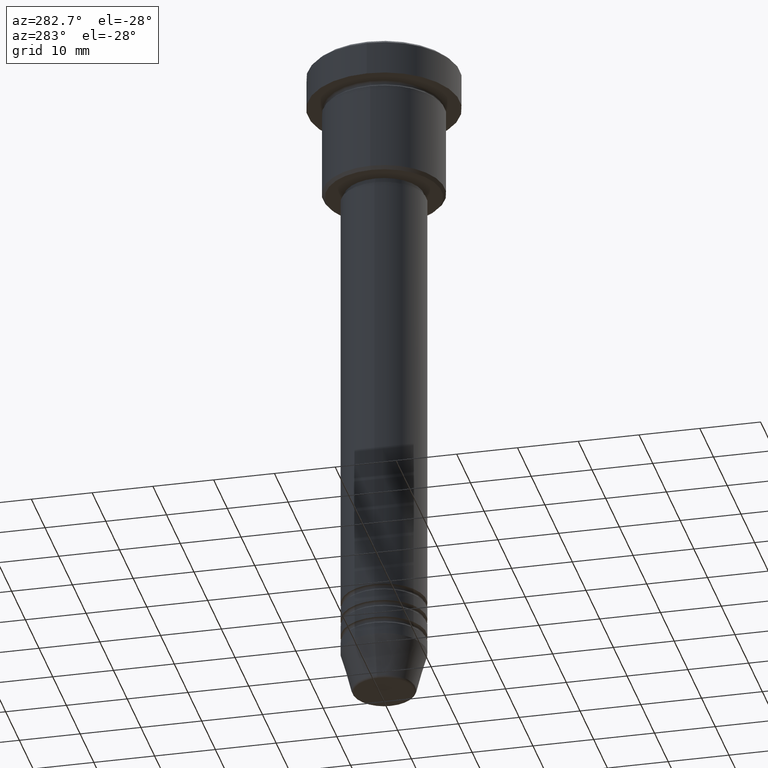
[diagram: clean part render]
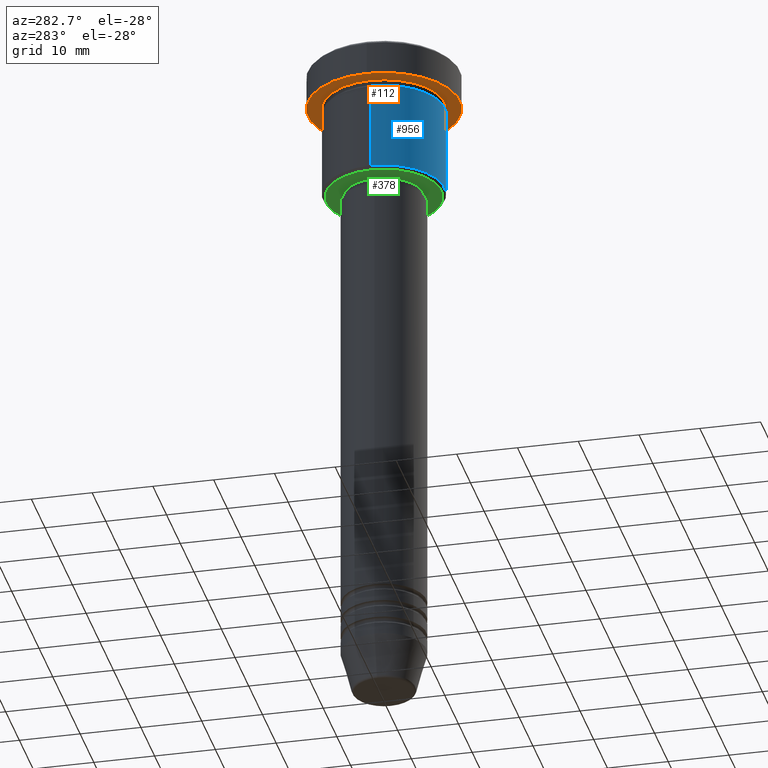
[diagram: same view with three faces highlighted in distinct colors, each labeled with its STEP entity id]
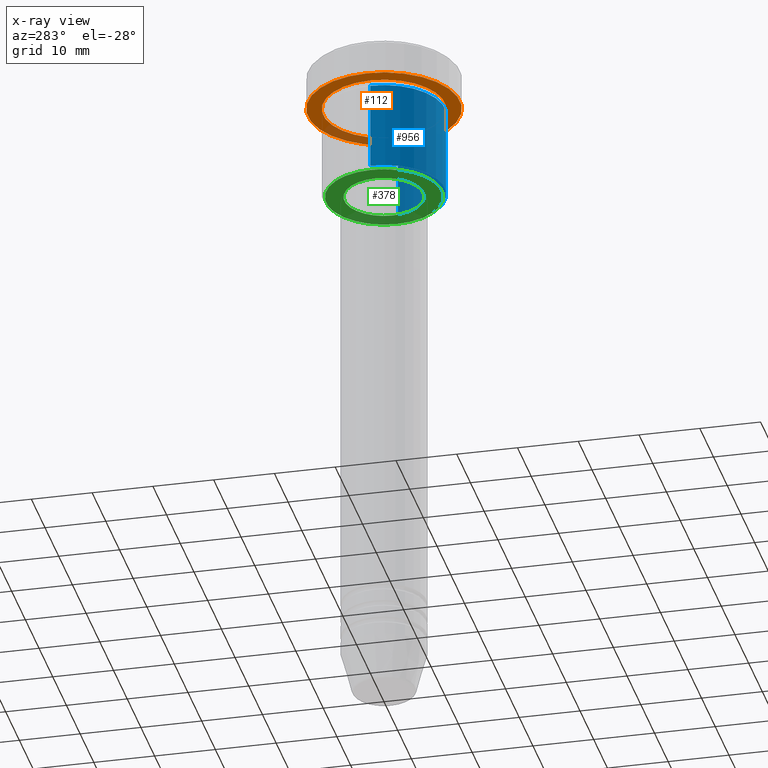
[diagram: x-ray of the same camera — body ghosted, the three highlighted faces saturated]
A machine part, auxiliary view with three faces highlighted in distinct colors.
The next image is the same camera in x-ray (body ghosted, the three faces saturated) — at least one of them is partly hidden behind the body in this view.
Their STEP definitions:

[orange] entity #112 — the highlighted planar face has unit normal (0, 0, -1).
#30 = AXIS2_PLACEMENT_3D ( 'NONE', #208, #574, #396 ) ;
#32 = CARTESIAN_POINT ( 'NONE',  ( 0.000000000000000000, 0.000000000000000000, -5.999999999999996447 ) ) ;
#54 = ORIENTED_EDGE ( 'NONE', *, *, #1115, .T. ) ;
#98 = VERTEX_POINT ( 'NONE', #113 ) ;
#112 = ADVANCED_FACE ( 'NONE', ( #860, #150 ), #307, .T. ) ;
#113 = CARTESIAN_POINT ( 'NONE',  ( -12.50000000000000000, 1.530808498934191521E-15, -5.999999999999996447 ) ) ;
#150 = FACE_OUTER_BOUND ( 'NONE', #1120, .T. ) ;
#164 = CIRCLE ( 'NONE', #981, 12.50000000000000000 ) ;
#176 = AXIS2_PLACEMENT_3D ( 'NONE', #874, #335, #1149 ) ;
#177 = EDGE_CURVE ( 'NONE', #432, #98, #790, .T. ) ;
#204 = DIRECTION ( 'NONE',  ( 1.000000000000000000, 0.000000000000000000, 0.000000000000000000 ) ) ;
#208 = CARTESIAN_POINT ( 'NONE',  ( 0.000000000000000000, 0.000000000000000000, -5.999999999999996447 ) ) ;
#275 = AXIS2_PLACEMENT_3D ( 'NONE', #912, #291, #204 ) ;
#291 = DIRECTION ( 'NONE',  ( -0.000000000000000000, -0.000000000000000000, 1.000000000000000000 ) ) ;
#304 = VERTEX_POINT ( 'NONE', #521 ) ;
#307 = PLANE ( 'NONE',  #176 ) ;
#335 = DIRECTION ( 'NONE',  ( 0.000000000000000000, 0.000000000000000000, -1.000000000000000000 ) ) ;
#365 = DIRECTION ( 'NONE',  ( -0.000000000000000000, -0.000000000000000000, 1.000000000000000000 ) ) ;
#376 = ORIENTED_EDGE ( 'NONE', *, *, #177, .F. ) ;
#385 = CARTESIAN_POINT ( 'NONE',  ( 12.50000000000000000, 0.000000000000000000, -5.999999999999996447 ) ) ;
#396 = DIRECTION ( 'NONE',  ( -1.000000000000000000, 0.000000000000000000, 0.000000000000000000 ) ) ;
#422 = ORIENTED_EDGE ( 'NONE', *, *, #468, .T. ) ;
#432 = VERTEX_POINT ( 'NONE', #385 ) ;
#446 = DIRECTION ( 'NONE',  ( -0.000000000000000000, -0.000000000000000000, 1.000000000000000000 ) ) ;
#462 = VERTEX_POINT ( 'NONE', #658 ) ;
#468 = EDGE_CURVE ( 'NONE', #304, #462, #544, .T. ) ;
#521 = CARTESIAN_POINT ( 'NONE',  ( -10.00000000000000000, 0.000000000000000000, -5.999999999999996447 ) ) ;
#544 = CIRCLE ( 'NONE', #30, 10.00000000000000000 ) ;
#553 = DIRECTION ( 'NONE',  ( -1.000000000000000000, 0.000000000000000000, 0.000000000000000000 ) ) ;
#574 = DIRECTION ( 'NONE',  ( -0.000000000000000000, -0.000000000000000000, 1.000000000000000000 ) ) ;
#658 = CARTESIAN_POINT ( 'NONE',  ( 10.00000000000000000, 1.224646799147353256E-15, -5.999999999999996447 ) ) ;
#790 = CIRCLE ( 'NONE', #275, 12.50000000000000000 ) ;
#836 = AXIS2_PLACEMENT_3D ( 'NONE', #32, #446, #553 ) ;
#860 = FACE_BOUND ( 'NONE', #1138, .T. ) ;
#874 = CARTESIAN_POINT ( 'NONE',  ( 0.000000000000000000, 12.50000000000000000, -5.999999999999996447 ) ) ;
#912 = CARTESIAN_POINT ( 'NONE',  ( 0.000000000000000000, 0.000000000000000000, -5.999999999999996447 ) ) ;
#942 = ORIENTED_EDGE ( 'NONE', *, *, #1151, .F. ) ;
#981 = AXIS2_PLACEMENT_3D ( 'NONE', #1001, #365, #987 ) ;
#987 = DIRECTION ( 'NONE',  ( 1.000000000000000000, 0.000000000000000000, 0.000000000000000000 ) ) ;
#1001 = CARTESIAN_POINT ( 'NONE',  ( 0.000000000000000000, 0.000000000000000000, -5.999999999999996447 ) ) ;
#1057 = CIRCLE ( 'NONE', #836, 10.00000000000000000 ) ;
#1115 = EDGE_CURVE ( 'NONE', #462, #304, #1057, .T. ) ;
#1120 = EDGE_LOOP ( 'NONE', ( #376, #942 ) ) ;
#1138 = EDGE_LOOP ( 'NONE', ( #422, #54 ) ) ;
#1149 = DIRECTION ( 'NONE',  ( -1.000000000000000000, 0.000000000000000000, -0.000000000000000000 ) ) ;
#1151 = EDGE_CURVE ( 'NONE', #98, #432, #164, .T. ) ;

[blue] entity #956 — the highlighted cylindrical surface (partial cylindrical patch) has radius 10 mm, axis along (-0, -0, 1).
#2 = DIRECTION ( 'NONE',  ( -0.000000000000000000, -0.000000000000000000, 1.000000000000000000 ) ) ;
#3 = EDGE_LOOP ( 'NONE', ( #839, #191, #119, #225 ) ) ;
#19 = CARTESIAN_POINT ( 'NONE',  ( -10.00000000000000000, 1.224646799147353256E-15, 0.000000000000000000 ) ) ;
#22 = CARTESIAN_POINT ( 'NONE',  ( -10.00000000000000000, 1.224646799147353256E-15, -6.999999999999996447 ) ) ;
#119 = ORIENTED_EDGE ( 'NONE', *, *, #746, .T. ) ;
#174 = CARTESIAN_POINT ( 'NONE',  ( -10.00000000000000000, 1.224646799147353256E-15, -21.49999999999998224 ) ) ;
#175 = VERTEX_POINT ( 'NONE', #22 ) ;
#191 = ORIENTED_EDGE ( 'NONE', *, *, #241, .T. ) ;
#225 = ORIENTED_EDGE ( 'NONE', *, *, #1106, .F. ) ;
#241 = EDGE_CURVE ( 'NONE', #699, #892, #1130, .T. ) ;
#317 = DIRECTION ( 'NONE',  ( -1.000000000000000000, 0.000000000000000000, 0.000000000000000000 ) ) ;
#324 = DIRECTION ( 'NONE',  ( -0.000000000000000000, -0.000000000000000000, 1.000000000000000000 ) ) ;
#352 = DIRECTION ( 'NONE',  ( 1.000000000000000000, 0.000000000000000000, 0.000000000000000000 ) ) ;
#384 = CARTESIAN_POINT ( 'NONE',  ( 10.00000000000000000, 0.000000000000000000, -21.49999999999998224 ) ) ;
#447 = CARTESIAN_POINT ( 'NONE',  ( 10.00000000000000000, 0.000000000000000000, 0.000000000000000000 ) ) ;
#522 = CARTESIAN_POINT ( 'NONE',  ( 0.000000000000000000, 0.000000000000000000, 0.000000000000000000 ) ) ;
#527 = CIRCLE ( 'NONE', #904, 10.00000000000000000 ) ;
#564 = VECTOR ( 'NONE', #725, 1000.000000000000000 ) ;
#585 = VECTOR ( 'NONE', #913, 1000.000000000000000 ) ;
#641 = EDGE_CURVE ( 'NONE', #699, #175, #988, .T. ) ;
#699 = VERTEX_POINT ( 'NONE', #174 ) ;
#725 = DIRECTION ( 'NONE',  ( -0.000000000000000000, -0.000000000000000000, 1.000000000000000000 ) ) ;
#735 = AXIS2_PLACEMENT_3D ( 'NONE', #522, #324, #797 ) ;
#746 = EDGE_CURVE ( 'NONE', #892, #1012, #824, .T. ) ;
#763 = CARTESIAN_POINT ( 'NONE',  ( 0.000000000000000000, 0.000000000000000000, -21.49999999999998224 ) ) ;
#797 = DIRECTION ( 'NONE',  ( 1.000000000000000000, 0.000000000000000000, 0.000000000000000000 ) ) ;
#824 = LINE ( 'NONE', #447, #585 ) ;
#839 = ORIENTED_EDGE ( 'NONE', *, *, #641, .F. ) ;
#867 = CARTESIAN_POINT ( 'NONE',  ( 10.00000000000000000, 0.000000000000000000, -6.999999999999996447 ) ) ;
#878 = FACE_OUTER_BOUND ( 'NONE', #3, .T. ) ;
#883 = AXIS2_PLACEMENT_3D ( 'NONE', #763, #1125, #317 ) ;
#892 = VERTEX_POINT ( 'NONE', #384 ) ;
#904 = AXIS2_PLACEMENT_3D ( 'NONE', #984, #2, #352 ) ;
#913 = DIRECTION ( 'NONE',  ( -0.000000000000000000, -0.000000000000000000, 1.000000000000000000 ) ) ;
#956 = ADVANCED_FACE ( 'NONE', ( #878 ), #1157, .T. ) ;
#984 = CARTESIAN_POINT ( 'NONE',  ( 0.000000000000000000, 0.000000000000000000, -6.999999999999996447 ) ) ;
#988 = LINE ( 'NONE', #19, #564 ) ;
#1012 = VERTEX_POINT ( 'NONE', #867 ) ;
#1106 = EDGE_CURVE ( 'NONE', #175, #1012, #527, .T. ) ;
#1125 = DIRECTION ( 'NONE',  ( -0.000000000000000000, -0.000000000000000000, 1.000000000000000000 ) ) ;
#1130 = CIRCLE ( 'NONE', #883, 10.00000000000000000 ) ;
#1157 = CYLINDRICAL_SURFACE ( 'NONE', #735, 10.00000000000000000 ) ;

[green] entity #378 — the highlighted planar face has unit normal (0, 0, -1).
#6 = VERTEX_POINT ( 'NONE', #356 ) ;
#29 = VERTEX_POINT ( 'NONE', #813 ) ;
#145 = EDGE_LOOP ( 'NONE', ( #488, #716 ) ) ;
#173 = DIRECTION ( 'NONE',  ( 1.000000000000000000, 0.000000000000000000, 0.000000000000000000 ) ) ;
#209 = DIRECTION ( 'NONE',  ( -1.000000000000000000, 0.000000000000000000, 0.000000000000000000 ) ) ;
#244 = CIRCLE ( 'NONE', #998, 6.500000000000000000 ) ;
#256 = CIRCLE ( 'NONE', #1092, 9.499999999999980460 ) ;
#356 = CARTESIAN_POINT ( 'NONE',  ( -9.499999999999980460, 1.194030629168668286E-15, -21.99999999999999645 ) ) ;
#378 = ADVANCED_FACE ( 'NONE', ( #757, #418 ), #944, .T. ) ;
#405 = DIRECTION ( 'NONE',  ( -1.000000000000000000, 0.000000000000000000, 0.000000000000000000 ) ) ;
#418 = FACE_BOUND ( 'NONE', #514, .T. ) ;
#438 = CARTESIAN_POINT ( 'NONE',  ( 6.500000000000000000, 0.000000000000000000, -21.99999999999999645 ) ) ;
#488 = ORIENTED_EDGE ( 'NONE', *, *, #806, .T. ) ;
#514 = EDGE_LOOP ( 'NONE', ( #1145, #720 ) ) ;
#548 = CARTESIAN_POINT ( 'NONE',  ( 0.000000000000000000, 0.000000000000000000, -21.99999999999999645 ) ) ;
#587 = DIRECTION ( 'NONE',  ( 0.000000000000000000, 0.000000000000000000, -1.000000000000000000 ) ) ;
#599 = DIRECTION ( 'NONE',  ( -0.000000000000000000, -0.000000000000000000, 1.000000000000000000 ) ) ;
#623 = CARTESIAN_POINT ( 'NONE',  ( 0.000000000000000000, 0.000000000000000000, -21.99999999999999645 ) ) ;
#634 = DIRECTION ( 'NONE',  ( -0.000000000000000000, -0.000000000000000000, 1.000000000000000000 ) ) ;
#642 = CIRCLE ( 'NONE', #920, 9.499999999999980460 ) ;
#715 = DIRECTION ( 'NONE',  ( 0.000000000000000000, 0.000000000000000000, -1.000000000000000000 ) ) ;
#716 = ORIENTED_EDGE ( 'NONE', *, *, #1143, .T. ) ;
#720 = ORIENTED_EDGE ( 'NONE', *, *, #1101, .T. ) ;
#757 = FACE_OUTER_BOUND ( 'NONE', #145, .T. ) ;
#772 = CIRCLE ( 'NONE', #1014, 6.500000000000000000 ) ;
#789 = CARTESIAN_POINT ( 'NONE',  ( 0.000000000000000000, 0.000000000000000000, -21.99999999999999645 ) ) ;
#806 = EDGE_CURVE ( 'NONE', #1158, #6, #256, .T. ) ;
#813 = CARTESIAN_POINT ( 'NONE',  ( -6.500000000000000000, 7.960204194457795477E-16, -21.99999999999999645 ) ) ;
#847 = AXIS2_PLACEMENT_3D ( 'NONE', #854, #587, #1140 ) ;
#854 = CARTESIAN_POINT ( 'NONE',  ( 0.000000000000000000, 10.00000000000000000, -21.99999999999999645 ) ) ;
#920 = AXIS2_PLACEMENT_3D ( 'NONE', #623, #715, #209 ) ;
#940 = EDGE_CURVE ( 'NONE', #986, #29, #772, .T. ) ;
#944 = PLANE ( 'NONE',  #847 ) ;
#962 = DIRECTION ( 'NONE',  ( 1.000000000000000000, 0.000000000000000000, 0.000000000000000000 ) ) ;
#986 = VERTEX_POINT ( 'NONE', #438 ) ;
#998 = AXIS2_PLACEMENT_3D ( 'NONE', #548, #634, #173 ) ;
#1014 = AXIS2_PLACEMENT_3D ( 'NONE', #789, #599, #962 ) ;
#1015 = CARTESIAN_POINT ( 'NONE',  ( 0.000000000000000000, 0.000000000000000000, -21.99999999999999645 ) ) ;
#1034 = DIRECTION ( 'NONE',  ( 0.000000000000000000, 0.000000000000000000, -1.000000000000000000 ) ) ;
#1075 = CARTESIAN_POINT ( 'NONE',  ( 9.499999999999980460, 0.000000000000000000, -21.99999999999999645 ) ) ;
#1092 = AXIS2_PLACEMENT_3D ( 'NONE', #1015, #1034, #405 ) ;
#1101 = EDGE_CURVE ( 'NONE', #29, #986, #244, .T. ) ;
#1140 = DIRECTION ( 'NONE',  ( -1.000000000000000000, 0.000000000000000000, -0.000000000000000000 ) ) ;
#1143 = EDGE_CURVE ( 'NONE', #6, #1158, #642, .T. ) ;
#1145 = ORIENTED_EDGE ( 'NONE', *, *, #940, .T. ) ;
#1158 = VERTEX_POINT ( 'NONE', #1075 ) ;